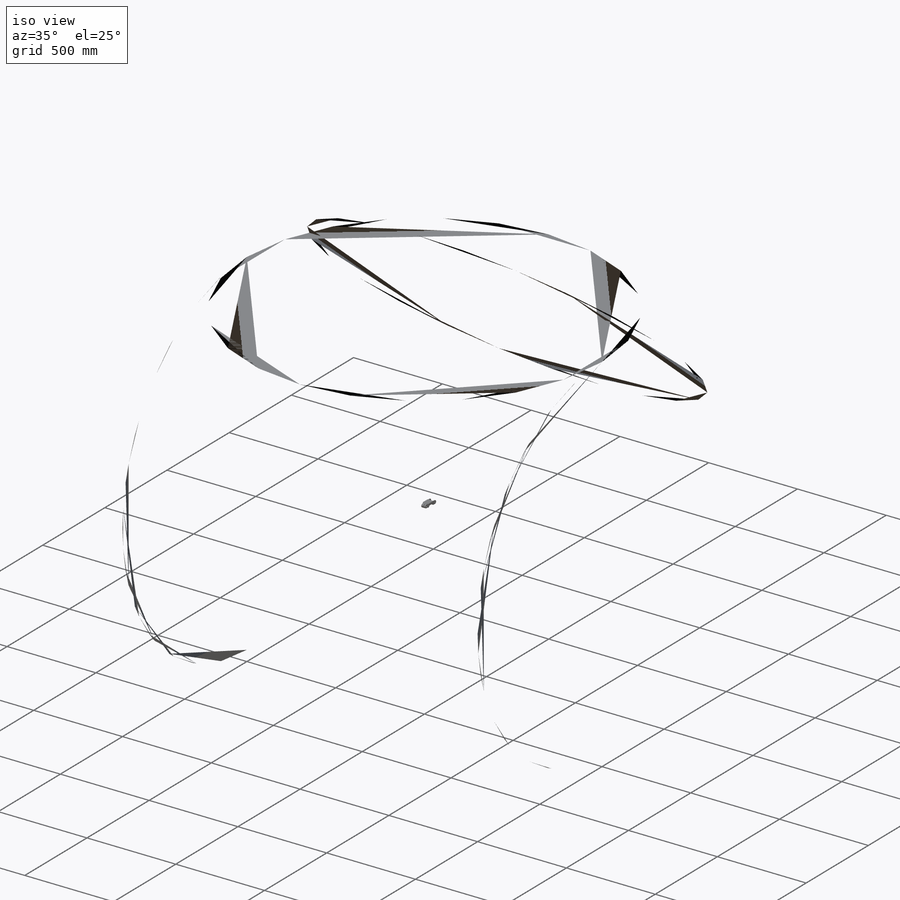
[diagram: iso view]
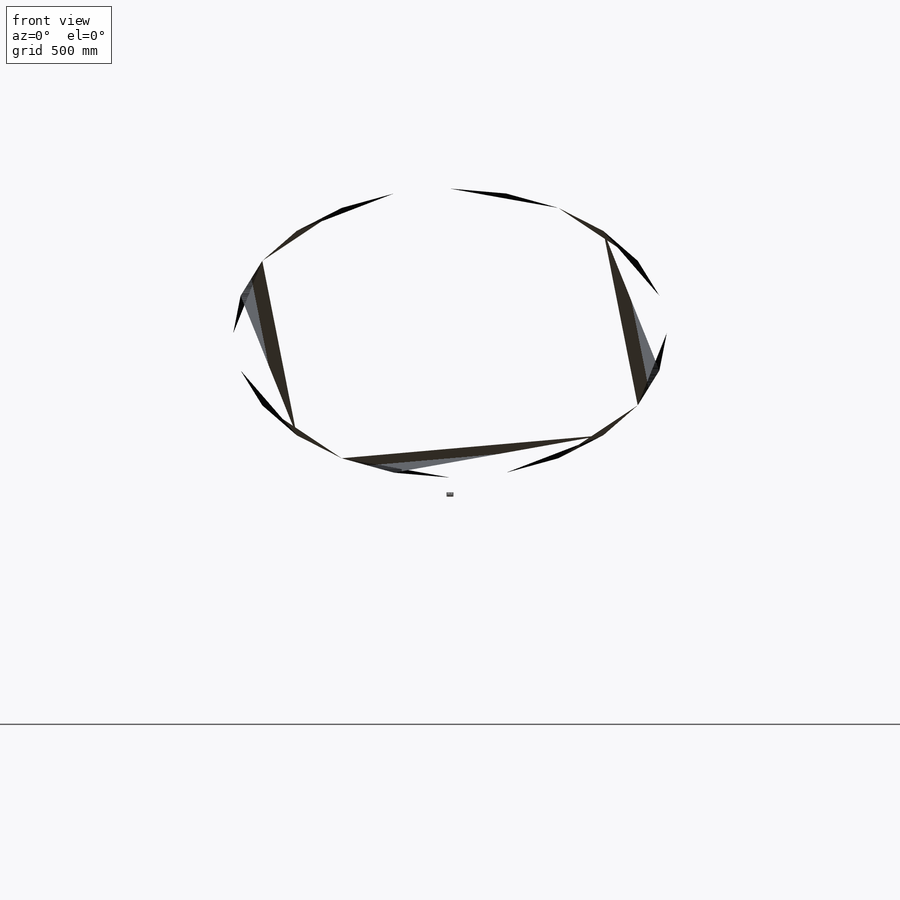
[diagram: front view]
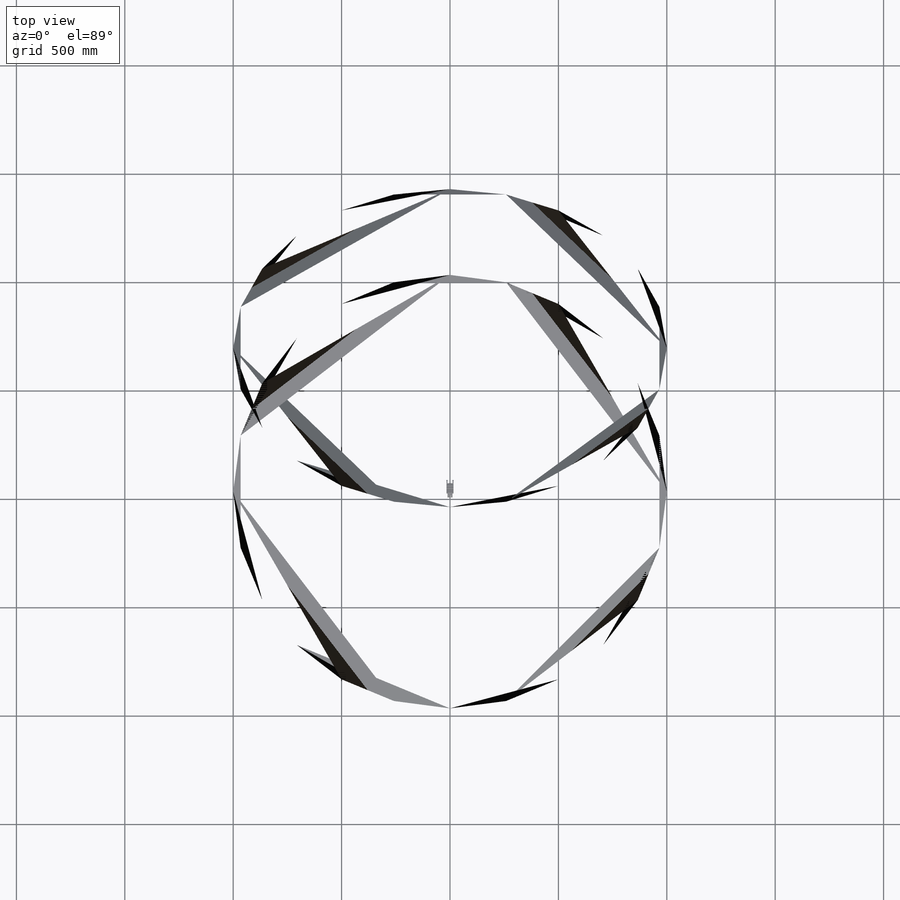
[diagram: top view]
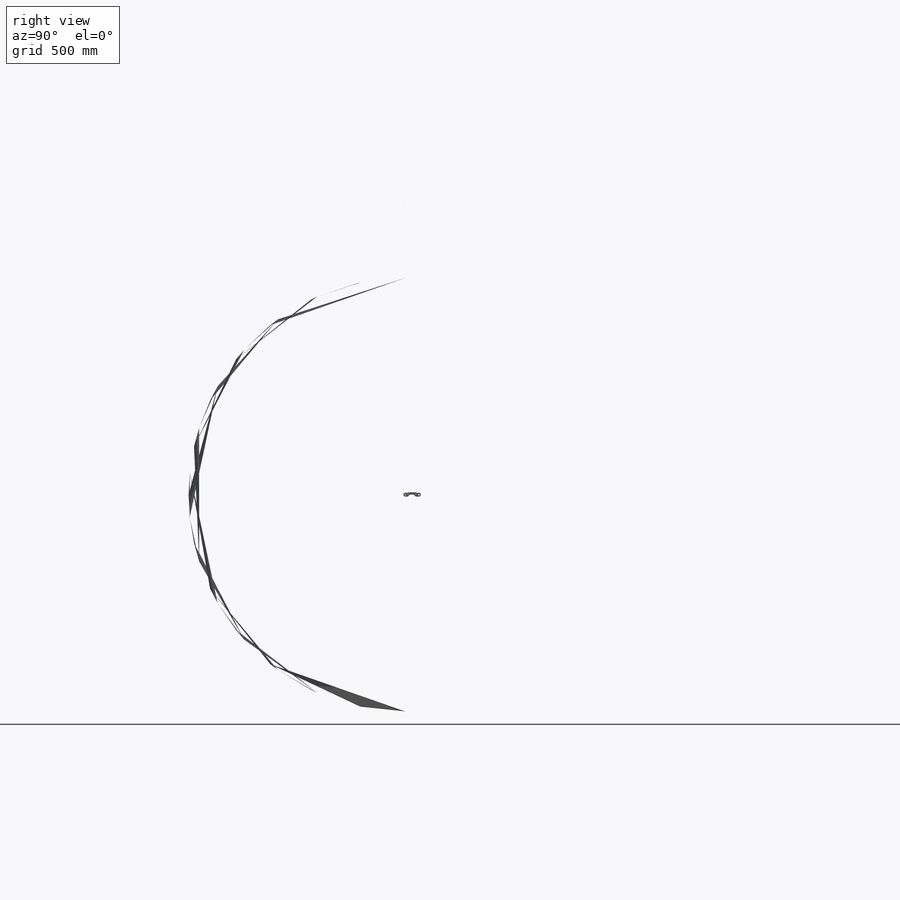
[diagram: right view]
SOLIDWORKS PART (.sldprt)
format: sldprt  version: not decoded by parser v0  size: 2,524,160 bytes
history: native  units: mm
features: sketch x26, cut_extrude x17, extrude x9, chamfer x6, fillet x3, material x1, boolean_combine x1 + 2 further entries (+26 scaffold rows collapsed; 10 parser-record rows omitted)
feature tree (101):
  scaffold x26  (default folders/planes/origin — collapsed)
  material  "ABS"
  "params_finger_t42"
  parser-record x10  (decoder bookkeeping rows leaked as tree rows — omitted from the tree; the rows remain in map.json)
  "params_print"
  sketch  "Sketch1"  dims[D1=6.35mm D2=62.5mm D3=18.0mm]
  extrude  "Finger Frame"  Depth=31.75mm
  sketch  "Sketch2"  dims[c1.D1=0.35mm c1.D2=62.5mm c2.D2=45.0deg c2.D3=1.5mm c2.D4=~7.93934mm c3.D2=62.5mm c4.D2=45.0deg c4.D4=~7.93934mm c5.D2=8.0mm c5.D4=62.5mm c6.D4=45.0deg c6.D5=2.5mm c7.D4=60.0deg]
  cut_extrude  "Routing Feature"  Depth=23.45mm
  sketch  "Sketch3"  dims[D1=3.175mm D2=6.8375mm D3=3.175mm]
  cut_extrude  "Routing Pins"  [1 undecoded]
  sketch  "Sketch7"  dims[D2=1.5mm D1=1.5mm]
  cut_extrude  "Tendon Port"  Depth=0.75mm
  chamfer  "Tendon Port Chamfer"  Distance=0.75mm Angle=45deg
  sketch  "Sketch6"  dims[D1=2.95mm D2=2.3mm D3=1.5mm]
  extrude  "Finger Pad Outline"  [1 undecoded]
  sketch  "Sketch5"  dims[D1=5.0mm]
  cut_extrude  "Finger Outline"  [1 undecoded]
  sketch  "Sketch8"  dims[D1=0.7mm]
  cut_extrude  "Cavity - Pads"  [1 undecoded]
  sketch  "Sketch9"
  extrude  "Pad Hooks"  Depth=28.75mm
  sketch  "Sketch23"  dims[D1=~33.940249mm D2=0.7mm D3=1.5mm D5=2.2mm D4=16.0]
  extrude  "Pad Ridges"  [1 undecoded]
  sketch  "Sketch10"  dims[c1.D1=10.0mm c1.D2=~35.657304mm c2.D2=70.0deg]
  cut_extrude  "Back Cutaway"  Depth=16.75mm
  sketch  "Sketch11"  dims[D1=16.0mm]
  cut_extrude  "Tendon Track"  Depth=0.2mm
  chamfer  "Tendon Track Chamfer"  Distance=1mm Angle=45deg
  sketch  "Sketch19"  dims[D1=3.7mm]
  cut_extrude  "Distal Spring Anchor"  Depth=4.5mm
  fillet  "Finger Contouring"  Radius=5mm
  fillet  "Contouring"  Radius=1mm
  sketch  "Sketch33"  dims[D1=18.3mm D2=4.5mm]
  cut_extrude  "Clearance - Finger Sides"  [1 undecoded]
  sketch  "Sketch18"  dims[c1.D1=3.175mm c1.D2=~8.400066mm c1.D3=~7.977804mm c2.D1=0.075mm c2.D2=0.075mm c2.D3=0.35mm]
  cut_extrude  "Print Clearances - Pins"  [1 undecoded]
  sketch  "Sketch13"  dims[D2=1.5mm D1=2.38mm]
  cut_extrude  "Spring Port"  Depth=0.75mm
  chamfer  "Spring Port Chamfer"  Distance=0.75mm Angle=45deg
  sketch  "Sketch17"  dims[D1=9.0mm D2=2.75mm D3=1.5mm]
  cut_extrude  "Clearance - Spring Track"  [1 undecoded]
  sketch  "Sketch20"  dims[D1=0.5mm D2=0.5mm]
  cut_extrude  "Extension Spring Track"  Depth=1mm
  chamfer  "Spring Track Chamfer"  Distance=0.5mm Angle=45deg
  sketch  "Sketch21"  dims[D1=1.5mm]
  cut_extrude  "Proximal Spring Anchor"  Depth=0.75mm
  chamfer  "Proximal Anchor Chamfer"  Distance=0.75mm Angle=45deg
  sketch  "Sketch24"  dims[D1=0.0mm]
  extrude  "Pad Material"  [1 undecoded]
  sketch  "Sketch25"  dims[D1=0.0mm]
  cut_extrude  "Wall Removal"  [1 undecoded]
  sketch  "Sketch26"  dims[c1.D1=0.0mm c1.D2=6.0mm c2.D1=6.0mm]
  extrude  "Mold Base"  Depth=3mm
  sketch  "Sketch28"  dims[c1.D1=0.0mm c1.D2=0.0mm c2.D1=3.0mm]
  extrude  "Mold Outer"  [1 undecoded]
  sketch  "Sketch29"  dims[c1.D1=0.0mm c1.D2=0.075mm c2.D1=0.075mm]
  cut_extrude  "Clearance - Inner Mold Cut"  [1 undecoded]
  boolean_combine  "Combine - Mold"
  sketch  "Sketch30"  dims[c1.D1=0.0mm c1.D2=2.925mm c2.D1=0.0mm c2.D2=0.075mm]
  extrude  "Mold Outermost"  Depth=3mm
  fillet  "Print Clearances - Mold Outer Lip"  Radius=1mm
  sketch  "Sketch31"  dims[D1=0.15mm D2=0.15mm]
  cut_extrude  "Mold Split"  [1 undecoded]
  sketch  "Sketch32"  dims[D1=3.0mm]
  extrude  "Mold Tab"  Depth=25.75mm
  chamfer  "Mold Tab Chamfer"  Distance=3.75mm Angle=45deg
decode coverage: 47 of 62 modeling features carry decoded parameters; 2 rows unclassified (native names shown)
note: ~ marks probable driven/reference dimensions
note: 13 parameter values undecoded
summary: no parameter record found for 13 features
note: suppression state not decoded; provenance and decode notes live in map.json
